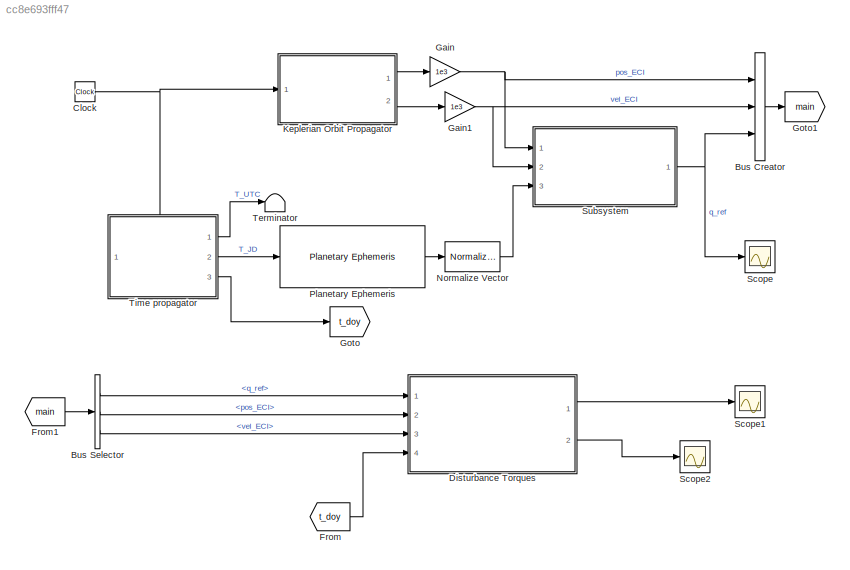
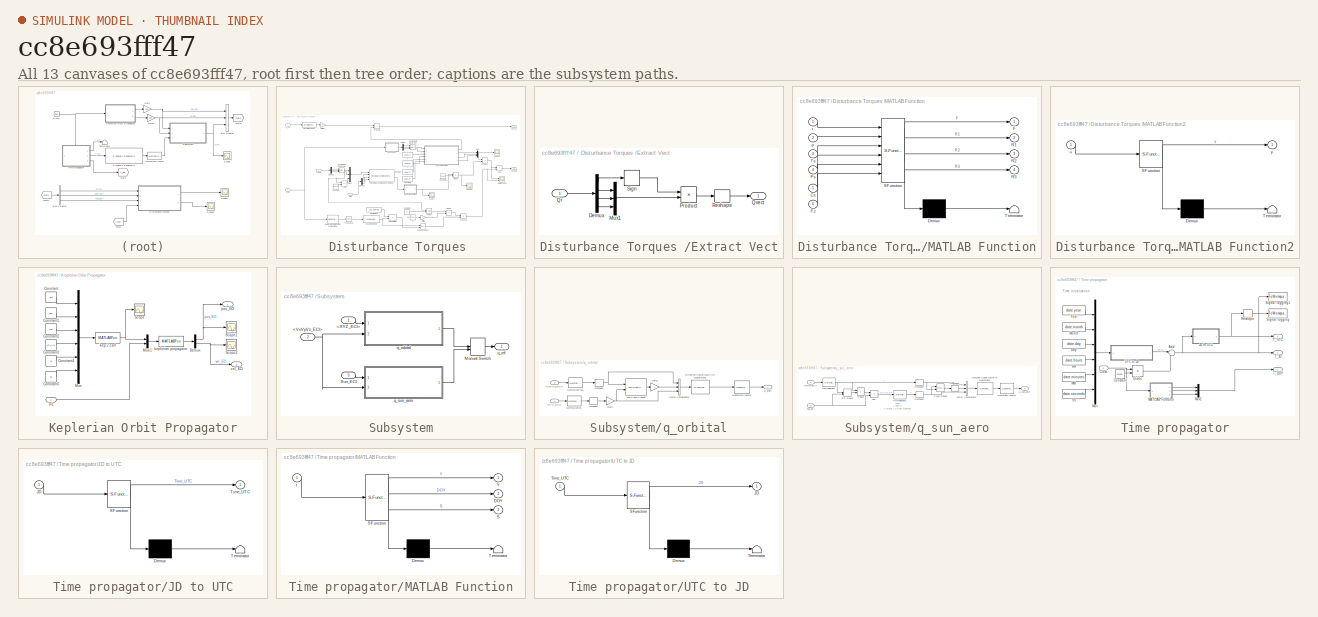
[diagram: thumbnail index - all 13 canvases of the model, root first then tree order]
MODEL slx_cc8e693fff47
KIND model
CONFIG AbsTol = auto
CONFIG EnableMultiTasking = off
CONFIG FixedStep = TimeStep
CONFIG MaxStep = auto
CONFIG MinStep = auto
CONFIG RelTol = 1e-3
CONFIG SampleTimeConstraint = Unconstrained
CONFIG SolverName = FixedStepAuto
CONFIG StartTime = 0.0
CONFIG StopTime = t_sim
BLOCK [BusCreator] Bus Creator
  DisplayOption = bar
  InheritFromInputs = on
  Inputs = 3
  Ports = [3, 1]
BLOCK [BusSelector] Bus Selector
  OutputSignals = q_ref,pos_ECI,vel_ECI
  Ports = [1, 3]
BLOCK [Clock] Clock
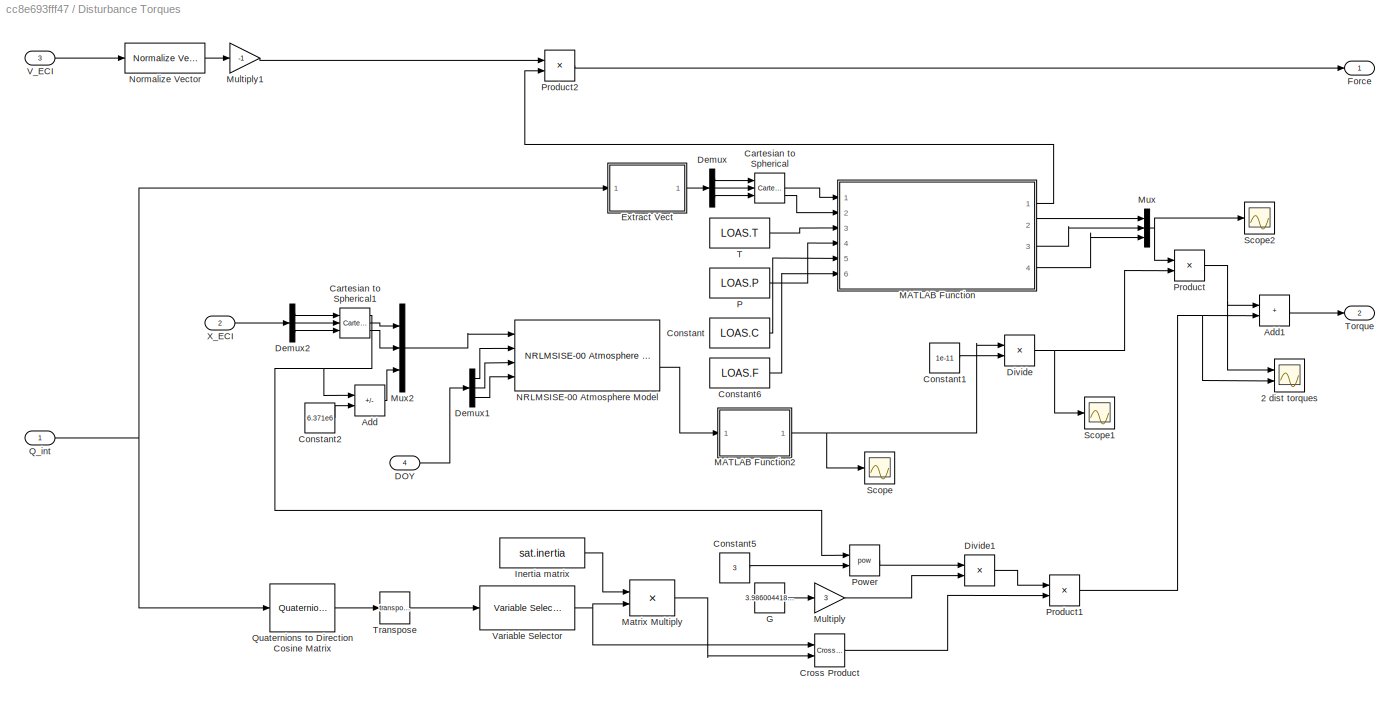
BLOCK [SubSystem] Disturbance Torques 
  Ports = [4, 2]
  RequestExecContextInheritance = off
BLOCK [Scope] Disturbance Torques /2 dist torques
  Floating = off
  NumInputPorts = 2
  Ports = [2]
  ScopeSpecificationString = Simulink.scopes.TimeScopeBlockCfg('CurrentConfiguration', extmgr.ConfigurationSet(extmgr.Configuration('Core','General UI',true),extmgr.Configuration('Core','Source UI',true),extmgr.Configuration('Sources','WiredSimulink',true,'DataLoggingVariableName','ScopeData1'),extmgr.Configuration('Visuals','Time Domain',true,'SerializedDisplays',{struct('MinYLimReal','-0.00000005','MaxYLimReal','0.00000007'...<+2345ch>
BLOCK [Sum] Disturbance Torques /Add
  IconShape = rectangular
  Inputs = +-
  Ports = [2, 1]
BLOCK [Sum] Disturbance Torques /Add1
  IconShape = rectangular
  Ports = [2, 1]
BLOCK [Reference] Disturbance Torques /Cartesian to Spherical  REF=simulink_extras/Transformations/Cartesian to
Spherical
  Ports = [3, 3]
  SourceBlock = simulink_extras/Transformations/Cartesian to\nSpherical
  SourceProductBaseCode = SL
  SourceType = Cart2Sph
BLOCK [Reference] Disturbance Torques /Cartesian to Spherical1  REF=simulink_extras/Transformations/Cartesian to
Spherical
  Ports = [3, 3]
  SourceBlock = simulink_extras/Transformations/Cartesian to\nSpherical
  SourceProductBaseCode = SL
  SourceType = Cart2Sph
BLOCK [Constant] Disturbance Torques /Constant
  Value = LOAS.C
BLOCK [Constant] Disturbance Torques /Constant1
  Value = 1e-11
BLOCK [Constant] Disturbance Torques /Constant2
  Value = 6.371e6
BLOCK [Constant] Disturbance Torques /Constant5
  Value = 3
BLOCK [Constant] Disturbance Torques /Constant6
  Value = LOAS.F
BLOCK [Reference] Disturbance Torques /Cross Product  REF=vrlib/Utilities/Cross Product
  Ports = [2, 1]
  SourceBlock = vrlib/Utilities/Cross Product
  SourceProductBaseCode = SL
  SourceType = Cross Product
BLOCK [Inport] Disturbance Torques /DOY
  Port = 4
BLOCK [Demux] Disturbance Torques /Demux
  Outputs = 3
  Ports = [1, 3]
BLOCK [Demux] Disturbance Torques /Demux1
  Outputs = 3
  Ports = [1, 3]
BLOCK [Demux] Disturbance Torques /Demux2
  Outputs = 3
  Ports = [1, 3]
BLOCK [Product] Disturbance Torques /Divide
  Inputs = */
  Ports = [2, 1]
BLOCK [Product] Disturbance Torques /Divide1
  Inputs = /*
  Ports = [2, 1]
BLOCK [SubSystem] Disturbance Torques /Extract Vect
  Ports = [1, 1]
  RequestExecContextInheritance = off
BLOCK [Demux] Disturbance Torques /Extract Vect/Demux
  Ports = [1, 4]
BLOCK [Mux] Disturbance Torques /Extract Vect/Mux1
  DisplayOption = bar
  Inputs = 3
  Ports = [3, 1]
BLOCK [Product] Disturbance Torques /Extract Vect/Product
  Ports = [2, 1]
BLOCK [Inport] Disturbance Torques /Extract Vect/Qr
BLOCK [Outport] Disturbance Torques /Extract Vect/Qvect
  VectorParamsAs1DForOutWhenUnconnected = off
BLOCK [Reshape] Disturbance Torques /Extract Vect/Reshape
  OutputDimensionality = Column vector (2-D)
  Ports = [1, 1]
BLOCK [Signum] Disturbance Torques /Extract Vect/Sign
BLOCK [Outport] Disturbance Torques /Force
BLOCK [Constant] Disturbance Torques /G
  Value = 3.9860044188e14
BLOCK [Constant] Disturbance Torques /Inertia matrix
  Value = sat.inertia
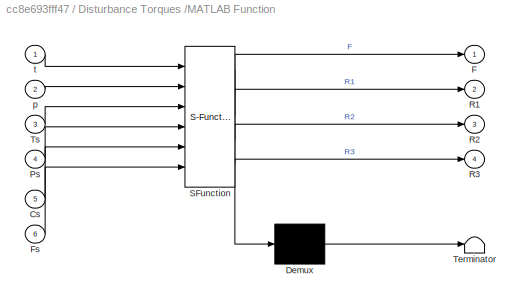
BLOCK [SubSystem] Disturbance Torques /MATLAB Function
  ErrorFcn = Stateflow.Translate.translate
  PermitHierarchicalResolution = ExplicitOnly
  Ports = [6, 4]
  RequestExecContextInheritance = off
  SFBlockType = MATLAB Function
  TreatAsAtomicUnit = on
BLOCK [Demux] Disturbance Torques /MATLAB Function/ Demux 
  Outputs = 1
  Ports = [1, 1]
BLOCK [S-Function] Disturbance Torques /MATLAB Function/ SFunction 
  EnableBusSupport = on
  FunctionName = sf_sfun
  PortCounts = [6 5]
  Ports = [6, 5]
  SFcnIsStateOwnerBlock = off
  SFunctionDeploymentMode = off
  Tag = Stateflow S-Function 4
BLOCK [Terminator] Disturbance Torques /MATLAB Function/ Terminator 
BLOCK [Inport] Disturbance Torques /MATLAB Function/Cs
  Port = 5
BLOCK [Outport] Disturbance Torques /MATLAB Function/F
BLOCK [Inport] Disturbance Torques /MATLAB Function/Fs
  Port = 6
BLOCK [Inport] Disturbance Torques /MATLAB Function/Ps
  Port = 4
BLOCK [Outport] Disturbance Torques /MATLAB Function/R1
  Port = 2
BLOCK [Outport] Disturbance Torques /MATLAB Function/R2
  Port = 3
BLOCK [Outport] Disturbance Torques /MATLAB Function/R3
  Port = 4
BLOCK [Inport] Disturbance Torques /MATLAB Function/Ts
  Port = 3
BLOCK [Inport] Disturbance Torques /MATLAB Function/p
  Port = 2
BLOCK [Inport] Disturbance Torques /MATLAB Function/t
BLOCK [SubSystem] Disturbance Torques /MATLAB Function2
  ErrorFcn = Stateflow.Translate.translate
  PermitHierarchicalResolution = ExplicitOnly
  Ports = [1, 1]
  RequestExecContextInheritance = off
  SFBlockType = MATLAB Function
  TreatAsAtomicUnit = on
BLOCK [Demux] Disturbance Torques /MATLAB Function2/ Demux 
  Outputs = 1
  Ports = [1, 1]
BLOCK [S-Function] Disturbance Torques /MATLAB Function2/ SFunction 
  EnableBusSupport = on
  FunctionName = sf_sfun
  PortCounts = [1 2]
  Ports = [1, 2]
  SFcnIsStateOwnerBlock = off
  SFunctionDeploymentMode = off
  Tag = Stateflow S-Function 6
BLOCK [Terminator] Disturbance Torques /MATLAB Function2/ Terminator 
BLOCK [Inport] Disturbance Torques /MATLAB Function2/u
BLOCK [Outport] Disturbance Torques /MATLAB Function2/y
BLOCK [Product] Disturbance Torques /Matrix Multiply
  Multiplication = Matrix(*)
  Ports = [2, 1]
BLOCK [Gain] Disturbance Torques /Multiply
  Gain = 3
BLOCK [Gain] Disturbance Torques /Multiply1
  Gain = -1
BLOCK [Mux] Disturbance Torques /Mux
  DisplayOption = bar
  Inputs = 3
  Ports = [3, 1]
BLOCK [Mux] Disturbance Torques /Mux2
  DisplayOption = bar
  Inputs = 3
  Ports = [3, 1]
BLOCK [Reference] Disturbance Torques /NRLMSISE-00 Atmosphere Model  REF=aerolibatmos2/NRLMSISE-00
Atmosphere Model
  Ports = [4, 2]
  SourceBlock = aerolibatmos2/NRLMSISE-00\nAtmosphere Model
  SourceProductBaseCode = AE
  SourceType = NRLMSISE-00 Model
BLOCK [Reference] Disturbance Torques /Normalize Vector  REF=vrlib/Utilities/Normalize Vector
  Ports = [1, 1]
  SourceBlock = vrlib/Utilities/Normalize Vector
  SourceProductBaseCode = SL
  SourceType = Normalize Vector
BLOCK [Constant] Disturbance Torques /P 
  Value = LOAS.P
BLOCK [Math] Disturbance Torques /Power
  Operator = pow
  Ports = [2, 1]
BLOCK [Product] Disturbance Torques /Product
  Ports = [2, 1]
BLOCK [Product] Disturbance Torques /Product1
  Ports = [2, 1]
BLOCK [Product] Disturbance Torques /Product2
  Ports = [2, 1]
BLOCK [Inport] Disturbance Torques /Q_int 
BLOCK [Reference] Disturbance Torques /Quaternions to Direction Cosine Matrix  REF=sharedtransform/Quaternions to 
Direction Cosine Matrix
  Ports = [1, 1]
  SourceBlock = sharedtransform/Quaternions to \nDirection Cosine Matrix
  SourceProductBaseCode = AE,PW,MT,UV,VE,VP
  SourceType = Quaternion2DCM
BLOCK [Scope] Disturbance Torques /Scope
  Floating = off
  NumInputPorts = 1
  Ports = [1]
  ScopeSpecificationString = Simulink.scopes.TimeScopeBlockCfg('CurrentConfiguration', extmgr.ConfigurationSet(extmgr.Configuration('Core','General UI',true),extmgr.Configuration('Core','Source UI',true),extmgr.Configuration('Sources','WiredSimulink',true,'DataLoggingVariableName','ScopeData1'),extmgr.Configuration('Visuals','Time Domain',true,'SerializedDisplays',{struct('MinYLimReal','0.0000000000137','MaxYLimReal','0.00000...<+1462ch>
BLOCK [Scope] Disturbance Torques /Scope1
  Floating = off
  NumInputPorts = 1
  Ports = [1]
  ScopeSpecificationString = Simulink.scopes.TimeScopeBlockCfg('CurrentConfiguration', extmgr.ConfigurationSet(extmgr.Configuration('Core','General UI',true),extmgr.Configuration('Core','Source UI',true),extmgr.Configuration('Sources','WiredSimulink',true,'DataLoggingVariableName','ScopeData2'),extmgr.Configuration('Visuals','Time Domain',true,'SerializedDisplays',{struct('MinYLimReal','0.0000000000137','MaxYLimReal','0.00000...<+1462ch>
BLOCK [Scope] Disturbance Torques /Scope2
  Floating = off
  NumInputPorts = 1
  Ports = [1]
  ScopeSpecificationString = Simulink.scopes.TimeScopeBlockCfg('CurrentConfiguration', extmgr.ConfigurationSet(extmgr.Configuration('Core','General UI',true),extmgr.Configuration('Core','Source UI',true),extmgr.Configuration('Sources','WiredSimulink',true,'DataLoggingVariableName','ScopeData3'),extmgr.Configuration('Visuals','Time Domain',true,'SerializedDisplays',{struct('MinYLimReal','0.0000000000137','MaxYLimReal','0.00000...<+1462ch>
BLOCK [Constant] Disturbance Torques /T 
  Value = LOAS.T
BLOCK [Outport] Disturbance Torques /Torque 
  Port = 2
BLOCK [Math] Disturbance Torques /Transpose
  Operator = transpose
  Ports = [1, 1]
BLOCK [Inport] Disturbance Torques /V_ECI
  Port = 3
BLOCK [Reference] Disturbance Torques /Variable Selector  REF=dspindex/Variable
Selector
  Ports = [1, 1]
  SourceBlock = dspindex/Variable\nSelector
  SourceProductBaseCode = DS
  SourceType = Variable Selector
BLOCK [Inport] Disturbance Torques /X_ECI
  Port = 2
BLOCK [From] From
  GotoTag = t_doy
BLOCK [From] From1
  GotoTag = main
BLOCK [Gain] Gain
  Gain = 1e3
BLOCK [Gain] Gain1
  Gain = 1e3
BLOCK [Goto] Goto
  GotoTag = t_doy
BLOCK [Goto] Goto1
  GotoTag = main
BLOCK [SubSystem] Keplerian Orbit Propagator
  Ports = [1, 2]
  RequestExecContextInheritance = off
BLOCK [Constant] Keplerian Orbit Propagator/Constant
  Value = alt
BLOCK [Constant] Keplerian Orbit Propagator/Constant1
  Value = ecc
BLOCK [Constant] Keplerian Orbit Propagator/Constant2
  Value = inc
BLOCK [Constant] Keplerian Orbit Propagator/Constant3
  Value = RAAN
BLOCK [Constant] Keplerian Orbit Propagator/Constant4
  Value = w
BLOCK [Constant] Keplerian Orbit Propagator/Constant5
  Value = nu
BLOCK [Demux] Keplerian Orbit Propagator/Demux
  Outputs = 2
  Ports = [1, 2]
BLOCK [Inport] Keplerian Orbit Propagator/In1
BLOCK [Mux] Keplerian Orbit Propagator/Mux
  DisplayOption = bar
  Inputs = 6
  Ports = [6, 1]
BLOCK [Mux] Keplerian Orbit Propagator/Mux1
  DisplayOption = bar
  Inputs = 2
  Ports = [2, 1]
BLOCK [Scope] Keplerian Orbit Propagator/Scope
  Floating = off
  NumInputPorts = 1
  Ports = [1]
  ScopeSpecificationString = Simulink.scopes.TimeScopeBlockCfg('CurrentConfiguration', extmgr.ConfigurationSet(extmgr.Configuration('Core','General UI',true),extmgr.Configuration('Core','Source UI',true),extmgr.Configuration('Sources','WiredSimulink',true,'DataLoggingVariableName','ScopeData1'),extmgr.Configuration('Visuals','Time Domain',true,'SerializedDisplays',{struct('MinYLimReal','-11.46462','MaxYLimReal','7.36302','YLa...<+1634ch>
BLOCK [Scope] Keplerian Orbit Propagator/Scope1
  Floating = off
  NumInputPorts = 1
  Ports = [1]
  ScopeSpecificationString = Simulink.scopes.TimeScopeBlockCfg('CurrentConfiguration', extmgr.ConfigurationSet(extmgr.Configuration('Core','General UI',true),extmgr.Configuration('Core','Source UI',true),extmgr.Configuration('Sources','WiredSimulink',true,'DataLoggingVariableName','ScopeData2'),extmgr.Configuration('Visuals','Time Domain',true,'SerializedDisplays',{struct('MinYLimReal','-8307.56531','MaxYLimReal','8318.65804'...<+1443ch>
BLOCK [Scope] Keplerian Orbit Propagator/Scope2
  Floating = off
  NumInputPorts = 1
  Ports = [1]
  ScopeSpecificationString = Simulink.scopes.TimeScopeBlockCfg('CurrentConfiguration', extmgr.ConfigurationSet(extmgr.Configuration('Core','General UI',true),extmgr.Configuration('Core','Source UI',true),extmgr.Configuration('Sources','WiredSimulink',true,'DataLoggingVariableName','ScopeData3'),extmgr.Configuration('Visuals','Time Domain',true,'SerializedDisplays',{struct('MinYLimReal','-9.62155','MaxYLimReal','9.61306','YLab...<+1446ch>
BLOCK [MATLABFcn] Keplerian Orbit Propagator/kep 2 cart
  MATLABFcn = Kepler2Carts
  Ports = [1, 1]
BLOCK [MATLABFcn] Keplerian Orbit Propagator/keplerian propagator
  MATLABFcn = kep_propagator
  Ports = [1, 1]
BLOCK [Outport] Keplerian Orbit Propagator/pos_ECI
BLOCK [Outport] Keplerian Orbit Propagator/vel_ECI
  Port = 2
BLOCK [Reference] Normalize Vector  REF=vrlib/Utilities/Normalize Vector
  Ports = [1, 1]
  SourceBlock = vrlib/Utilities/Normalize Vector
  SourceProductBaseCode = SL
  SourceType = Normalize Vector
BLOCK [Reference] Planetary Ephemeris  REF=aerolibcelestial/Planetary Ephemeris
  Ports = [1, 1]
  SourceBlock = aerolibcelestial/Planetary Ephemeris
  SourceProductBaseCode = AE
  SourceType = PlanetaryEphemeris
BLOCK [Scope] Scope
  Floating = off
  NumInputPorts = 1
  Ports = [1]
  ScopeSpecificationString = Simulink.scopes.TimeScopeBlockCfg('CurrentConfiguration', extmgr.ConfigurationSet(extmgr.Configuration('Core','General UI',true),extmgr.Configuration('Core','Source UI',true),extmgr.Configuration('Sources','WiredSimulink',true,'DataLoggingVariableName','ScopeData1'),extmgr.Configuration('Visuals','Time Domain',true,'SerializedDisplays',{struct('MinYLimReal','-0.95121','MaxYLimReal','0.8075','YLabe...<+1408ch>
BLOCK [Scope] Scope1
  Floating = off
  NumInputPorts = 1
  Ports = [1]
  ScopeSpecificationString = Simulink.scopes.TimeScopeBlockCfg('CurrentConfiguration', extmgr.ConfigurationSet(extmgr.Configuration('Core','General UI',true),extmgr.Configuration('Core','Source UI',true),extmgr.Configuration('Sources','WiredSimulink',true,'DataLoggingVariableName','ScopeData2'),extmgr.Configuration('Visuals','Time Domain',true,'SerializedDisplays',{struct('MinYLimReal','-0.00007','MaxYLimReal','0.00007','YLab...<+1437ch>
BLOCK [Scope] Scope2
  Floating = off
  NumInputPorts = 1
  Ports = [1]
  ScopeSpecificationString = Simulink.scopes.TimeScopeBlockCfg('CurrentConfiguration', extmgr.ConfigurationSet(extmgr.Configuration('Core','General UI',true),extmgr.Configuration('Core','Source UI',true),extmgr.Configuration('Sources','WiredSimulink',true,'DataLoggingVariableName','ScopeData3'),extmgr.Configuration('Visuals','Time Domain',true,'SerializedDisplays',{struct('MinYLimReal','-0.00000006','MaxYLimReal','0.00000007'...<+1461ch>
BLOCK [SubSystem] Subsystem
  Ports = [3, 1]
  RequestExecContextInheritance = off
BLOCK [Inport] Subsystem/<VxVyVz_ECI>
  Port = 2
BLOCK [Inport] Subsystem/<XYZ_ECI>
BLOCK [ManualSwitch] Subsystem/Manual Switch
BLOCK [Inport] Subsystem/Sun_ECI
  Port = 3
BLOCK [SubSystem] Subsystem/q_orbital
  Ports = [2, 1]
  RequestExecContextInheritance = off
BLOCK [Reference] Subsystem/q_orbital/3x3 Cross Product  REF=sharedutil/3x3 Cross Product
  Ports = [2, 1]
  SourceBlock = sharedutil/3x3 Cross Product
  SourceProductBaseCode = AE,PW,MT,UV,VE,VP
  SourceType = CrossProduct
BLOCK [Inport] Subsystem/q_orbital/<VxVyVz_ECI>
  Port = 2
BLOCK [Inport] Subsystem/q_orbital/<XYZ_ECI>
BLOCK [Reference] Subsystem/q_orbital/Direction Cosine Matrix to Quaternions  REF=sharedtransform/Direction Cosine Matrix 
to Quaternions
  Ports = [1, 1]
  SourceBlock = sharedtransform/Direction Cosine Matrix \nto Quaternions
  SourceProductBaseCode = AE,PW,MT,UV,VE,VP
  SourceType = DCM2Quaternion
BLOCK [Gain] Subsystem/q_orbital/Gain
BLOCK [Gain] Subsystem/q_orbital/Gain1
  Gain = -1
BLOCK [Reference] Subsystem/q_orbital/Normalization  REF=dspmathops/Normalization
  Ports = [1, 1]
  SourceBlock = dspmathops/Normalization
  SourceProductBaseCode = DS
  SourceType = Normalization
BLOCK [Reference] Subsystem/q_orbital/Normalization1  REF=dspmathops/Normalization
  Ports = [1, 1]
  SourceBlock = dspmathops/Normalization
  SourceProductBaseCode = DS
  SourceType = Normalization
BLOCK [Outport] Subsystem/q_orbital/Q_orbit
  VectorParamsAs1DForOutWhenUnconnected = off
BLOCK [Reference] Subsystem/q_orbital/Quaternion Inverse  REF=aerolibutil/Quaternion
Inverse
  Ports = [1, 1]
  SourceBlock = aerolibutil/Quaternion\nInverse
  SourceProductBaseCode = AE
  SourceType = Quaternion Inverse
BLOCK [Reshape] Subsystem/q_orbital/Reshape
  OutputDimensionality = Column vector (2-D)
  Ports = [1, 1]
BLOCK [Reshape] Subsystem/q_orbital/Reshape1
  OutputDimensionality = Column vector (2-D)
  Ports = [1, 1]
BLOCK [Concatenate] Subsystem/q_orbital/Vector Concatenate
  ConcatenateDimension = 2
  Mode = Multidimensional array
  NumInputs = 3
  Ports = [3, 1]
BLOCK [Outport] Subsystem/q_ref
BLOCK [SubSystem] Subsystem/q_sun_aero
  Ports = [2, 1]
  RequestExecContextInheritance = off
BLOCK [Inport] Subsystem/q_sun_aero/<VxVyVz_ECI>
  Port = 2
BLOCK [Reference] Subsystem/q_sun_aero/Cross Product  REF=vrlib/Utilities/Cross Product
  Ports = [2, 1]
  SourceBlock = vrlib/Utilities/Cross Product
  SourceProductBaseCode = SL
  SourceType = Cross Product
BLOCK [Reference] Subsystem/q_sun_aero/Direction Cosine Matrix to Quaternions  REF=sharedtransform/Direction Cosine Matrix 
to Quaternions
  Ports = [1, 1]
  SourceBlock = sharedtransform/Direction Cosine Matrix \nto Quaternions
  SourceProductBaseCode = AE,PW,MT,UV,VE,VP
  SourceType = DCM2Quaternion
BLOCK [DotProduct] Subsystem/q_sun_aero/Dot Product
  OutDataTypeStr = Inherit: Inherit via internal rule
BLOCK [Reference] Subsystem/q_sun_aero/Normalization1  REF=dspmathops/Normalization
  Ports = [1, 1]
  SourceBlock = dspmathops/Normalization
  SourceProductBaseCode = DS
  SourceType = Normalization
BLOCK [Reference] Subsystem/q_sun_aero/Normalization2  REF=dspmathops/Normalization
  Ports = [1, 1]
  SourceBlock = dspmathops/Normalization
  SourceProductBaseCode = DS
  SourceType = Normalization
BLOCK [Sum] Subsystem/q_sun_aero/Plus
  IconShape = rectangular
  Inputs = -+
  Ports = [2, 1]
BLOCK [Product] Subsystem/q_sun_aero/Product
  Ports = [2, 1]
BLOCK [Outport] Subsystem/q_sun_aero/Q_sun_aero
  VectorParamsAs1DForOutWhenUnconnected = off
BLOCK [Reference] Subsystem/q_sun_aero/Quaternion Inverse  REF=aerolibutil/Quaternion
Inverse
  Ports = [1, 1]
  SourceBlock = aerolibutil/Quaternion\nInverse
  SourceProductBaseCode = AE
  SourceType = Quaternion Inverse
BLOCK [Reshape] Subsystem/q_sun_aero/Reshape1
  OutputDimensionality = Column vector (2-D)
  Ports = [1, 1]
BLOCK [Reshape] Subsystem/q_sun_aero/Reshape2
  OutputDimensionality = Column vector (2-D)
  Ports = [1, 1]
BLOCK [Reshape] Subsystem/q_sun_aero/Reshape3
  OutputDimensionality = Column vector (2-D)
  Ports = [1, 1]
BLOCK [Inport] Subsystem/q_sun_aero/Sun_ECI
BLOCK [Concatenate] Subsystem/q_sun_aero/Vector Concatenate
  ConcatenateDimension = 2
  Mode = Multidimensional array
  NumInputs = 3
  Ports = [3, 1]
BLOCK [Terminator] Terminator
BLOCK [SubSystem] Time propagator
  PortSchema = {"entries":[{"content":{"sides":[{"content":{"connectorIds":[]},"type":"ConnectorPlacement.EquallySpacedRectSide","uuid":"7ef5eb6e-74fd-40ed-a8ee-9d1a69b44829"},{"content":{"connectorIds":["Out1","Out2","Out3"],"side":"RIGHT"},"type":"ConnectorPlacement.EquallySpacedRectSide","uuid":"c2943143-c830-4f44-8257-0a7a59c653c3"},{"content":{"connectorIds":["In1"],"side":"TOP"},"type":"ConnectorPlacement....<+398ch>
  Ports = [1, 3]
  RequestExecContextInheritance = off
BLOCK [Sum] Time propagator/Add
  Inputs = |++
  Ports = [2, 1]
BLOCK [Inport] Time propagator/Clock
BLOCK [Constant] Time propagator/Constant
  Value = 86400
BLOCK [Constant] Time propagator/Day
  Value = date.day
BLOCK [Product] Time propagator/Divide
  Inputs = */
  Ports = [2, 1]
BLOCK [Constant] Time propagator/HH
  Value = date.hours
BLOCK [SubSystem] Time propagator/JD to UTC
  ErrorFcn = Stateflow.Translate.translate
  PermitHierarchicalResolution = ExplicitOnly
  Ports = [1, 1]
  RequestExecContextInheritance = off
  SFBlockType = MATLAB Function
  TreatAsAtomicUnit = on
BLOCK [Demux] Time propagator/JD to UTC/ Demux 
  Outputs = 1
  Ports = [1, 1]
BLOCK [S-Function] Time propagator/JD to UTC/ SFunction 
  EnableBusSupport = on
  FunctionName = sf_sfun
  PortCounts = [1 2]
  Ports = [1, 2]
  SFcnIsStateOwnerBlock = off
  SFunctionDeploymentMode = off
  Tag = Stateflow S-Function 8
BLOCK [Terminator] Time propagator/JD to UTC/ Terminator 
BLOCK [Inport] Time propagator/JD to UTC/JD
BLOCK [Outport] Time propagator/JD to UTC/Time_UTC
  VectorParamsAs1DForOutWhenUnconnected = off
BLOCK [SubSystem] Time propagator/MATLAB Function
  ErrorFcn = Stateflow.Translate.translate
  PermitHierarchicalResolution = ExplicitOnly
  Ports = [1, 3]
  RequestExecContextInheritance = off
  SFBlockType = MATLAB Function
  TreatAsAtomicUnit = on
BLOCK [Demux] Time propagator/MATLAB Function/ Demux 
  Outputs = 1
  Ports = [1, 1]
BLOCK [S-Function] Time propagator/MATLAB Function/ SFunction 
  EnableBusSupport = on
  FunctionName = sf_sfun
  PortCounts = [1 4]
  Ports = [1, 4]
  SFcnIsStateOwnerBlock = off
  SFunctionDeploymentMode = off
  Tag = Stateflow S-Function 16
BLOCK [Terminator] Time propagator/MATLAB Function/ Terminator 
BLOCK [Outport] Time propagator/MATLAB Function/DOY
  Port = 2
BLOCK [Outport] Time propagator/MATLAB Function/S
  Port = 3
BLOCK [Outport] Time propagator/MATLAB Function/Y
BLOCK [Inport] Time propagator/MATLAB Function/t
BLOCK [Constant] Time propagator/MM
  Value = date.minutes
BLOCK [Constant] Time propagator/Month
  Value = date.month
BLOCK [Mux] Time propagator/Mux
  DisplayOption = bar
  Inputs = 6
  Ports = [6, 1]
BLOCK [Mux] Time propagator/Mux1
  DisplayOption = bar
  Inputs = 3
  Ports = [3, 1]
BLOCK [Reshape] Time propagator/Reshape
  Ports = [1, 1]
BLOCK [Constant] Time propagator/SS
  Value = date.seconds
BLOCK [ToWorkspace] Time propagator/Signal logging
  FixptAsFi = on
  MaxDataPoints = inf
  Ports = [1]
  SampleTime = 1
  Save2DSignal = 2-D array (concatenate along first dimension)
  SaveFormat = Timeseries
  VariableName = T_UTC
BLOCK [ToWorkspace] Time propagator/Signal logging1
  FixptAsFi = on
  MaxDataPoints = inf
  Ports = [1]
  SampleTime = 1
  Save2DSignal = 2-D array (concatenate along first dimension)
  SaveFormat = Timeseries
  VariableName = T_JD
BLOCK [Outport] Time propagator/T_DOY
  Port = 3
BLOCK [Outport] Time propagator/T_JD
  Port = 2
  VectorParamsAs1DForOutWhenUnconnected = off
BLOCK [Outport] Time propagator/T_UTC
  VectorParamsAs1DForOutWhenUnconnected = off
BLOCK [SubSystem] Time propagator/UTC to JD
  ErrorFcn = Stateflow.Translate.translate
  PermitHierarchicalResolution = ExplicitOnly
  Ports = [1, 1]
  RequestExecContextInheritance = off
  SFBlockType = MATLAB Function
  TreatAsAtomicUnit = on
BLOCK [Demux] Time propagator/UTC to JD/ Demux 
  Outputs = 1
  Ports = [1, 1]
BLOCK [S-Function] Time propagator/UTC to JD/ SFunction 
  EnableBusSupport = on
  FunctionName = sf_sfun
  PortCounts = [1 2]
  Ports = [1, 2]
  SFcnIsStateOwnerBlock = off
  SFunctionDeploymentMode = off
  Tag = Stateflow S-Function 7
BLOCK [Terminator] Time propagator/UTC to JD/ Terminator 
BLOCK [Outport] Time propagator/UTC to JD/JD
  VectorParamsAs1DForOutWhenUnconnected = off
BLOCK [Inport] Time propagator/UTC to JD/Time_UTC
BLOCK [Constant] Time propagator/Year
  Value = date.year
ANNOTATION Subsystem/q_sun_aero: choix : x selon V z tel que z.GS soit maximisé
ANNOTATION Time propagator: Time initialization
LINE Bus Creator:1 -> Goto1:1
LINE Bus Selector:1 -> Disturbance Torques :1
LINE Bus Selector:2 -> Disturbance Torques :2
LINE Bus Selector:3 -> Disturbance Torques :3
NET Clock:1 -> Keplerian Orbit Propagator:1, Time propagator:1
LINE Disturbance Torques /Add1:1 -> Disturbance Torques /Torque :1
LINE Disturbance Torques /Add:1 -> Disturbance Torques /Mux2:3
NET Disturbance Torques /Cartesian to Spherical1:1 -> Disturbance Torques /Add:1, Disturbance Torques /Power:1
LINE Disturbance Torques /Cartesian to Spherical1:2 -> Disturbance Torques /Mux2:1
LINE Disturbance Torques /Cartesian to Spherical1:3 -> Disturbance Torques /Mux2:2
LINE Disturbance Torques /Cartesian to Spherical:2 -> Disturbance Torques /MATLAB Function:1
LINE Disturbance Torques /Cartesian to Spherical:3 -> Disturbance Torques /MATLAB Function:2
LINE Disturbance Torques /Constant1:1 -> Disturbance Torques /Divide:2
LINE Disturbance Torques /Constant2:1 -> Disturbance Torques /Add:2
LINE Disturbance Torques /Constant5:1 -> Disturbance Torques /Power:2
LINE Disturbance Torques /Constant6:1 -> Disturbance Torques /MATLAB Function:6
LINE Disturbance Torques /Constant:1 -> Disturbance Torques /MATLAB Function:5
LINE Disturbance Torques /Cross Product:1 -> Disturbance Torques /Product1:2
LINE Disturbance Torques /DOY:1 -> Disturbance Torques /Demux1:1
LINE Disturbance Torques /Demux1:1 -> Disturbance Torques /NRLMSISE-00 Atmosphere Model:2
LINE Disturbance Torques /Demux1:2 -> Disturbance Torques /NRLMSISE-00 Atmosphere Model:3
LINE Disturbance Torques /Demux1:3 -> Disturbance Torques /NRLMSISE-00 Atmosphere Model:4
LINE Disturbance Torques /Demux2:1 -> Disturbance Torques /Cartesian to Spherical1:1
LINE Disturbance Torques /Demux2:2 -> Disturbance Torques /Cartesian to Spherical1:2
LINE Disturbance Torques /Demux2:3 -> Disturbance Torques /Cartesian to Spherical1:3
LINE Disturbance Torques /Demux:1 -> Disturbance Torques /Cartesian to Spherical:1
LINE Disturbance Torques /Demux:2 -> Disturbance Torques /Cartesian to Spherical:2
LINE Disturbance Torques /Demux:3 -> Disturbance Torques /Cartesian to Spherical:3
LINE Disturbance Torques /Divide1:1 -> Disturbance Torques /Product1:1
NET Disturbance Torques /Divide:1 -> Disturbance Torques /Product:2, Disturbance Torques /Scope1:1
LINE Disturbance Torques /Extract Vect/Demux:1 -> Disturbance Torques /Extract Vect/Sign:1
LINE Disturbance Torques /Extract Vect/Demux:2 -> Disturbance Torques /Extract Vect/Mux1:1
LINE Disturbance Torques /Extract Vect/Demux:3 -> Disturbance Torques /Extract Vect/Mux1:2
LINE Disturbance Torques /Extract Vect/Demux:4 -> Disturbance Torques /Extract Vect/Mux1:3
LINE Disturbance Torques /Extract Vect/Mux1:1 -> Disturbance Torques /Extract Vect/Product:2
LINE Disturbance Torques /Extract Vect/Product:1 -> Disturbance Torques /Extract Vect/Reshape:1
LINE Disturbance Torques /Extract Vect/Qr:1 -> Disturbance Torques /Extract Vect/Demux:1
LINE Disturbance Torques /Extract Vect/Reshape:1 -> Disturbance Torques /Extract Vect/Qvect:1
LINE Disturbance Torques /Extract Vect/Sign:1 -> Disturbance Torques /Extract Vect/Product:1
LINE Disturbance Torques /Extract Vect:1 -> Disturbance Torques /Demux:1
LINE Disturbance Torques /G:1 -> Disturbance Torques /Multiply:1
LINE Disturbance Torques /Inertia matrix:1 -> Disturbance Torques /Matrix Multiply:1
NET Disturbance Torques /MATLAB Function2:1 -> Disturbance Torques /Divide:1, Disturbance Torques /Scope:1
LINE Disturbance Torques /MATLAB Function:1 -> Disturbance Torques /Product2:2
LINE Disturbance Torques /MATLAB Function:2 -> Disturbance Torques /Mux:1
LINE Disturbance Torques /MATLAB Function:3 -> Disturbance Torques /Mux:2
LINE Disturbance Torques /MATLAB Function:4 -> Disturbance Torques /Mux:3
LINE Disturbance Torques /Matrix Multiply:1 -> Disturbance Torques /Cross Product:2
LINE Disturbance Torques /Multiply1:1 -> Disturbance Torques /Product2:1
LINE Disturbance Torques /Multiply:1 -> Disturbance Torques /Divide1:2
LINE Disturbance Torques /Mux2:1 -> Disturbance Torques /NRLMSISE-00 Atmosphere Model:1
NET Disturbance Torques /Mux:1 -> Disturbance Torques /Product:1, Disturbance Torques /Scope2:1
LINE Disturbance Torques /NRLMSISE-00 Atmosphere Model:2 -> Disturbance Torques /MATLAB Function2:1
LINE Disturbance Torques /Normalize Vector:1 -> Disturbance Torques /Multiply1:1
LINE Disturbance Torques /P :1 -> Disturbance Torques /MATLAB Function:4
LINE Disturbance Torques /Power:1 -> Disturbance Torques /Divide1:1
NET Disturbance Torques /Product1:1 -> Disturbance Torques /2 dist torques:2, Disturbance Torques /Add1:2
LINE Disturbance Torques /Product2:1 -> Disturbance Torques /Force:1
NET Disturbance Torques /Product:1 -> Disturbance Torques /2 dist torques:1, Disturbance Torques /Add1:1
NET Disturbance Torques /Q_int :1 -> Disturbance Torques /Extract Vect:1, Disturbance Torques /Quaternions to Direction Cosine Matrix:1
LINE Disturbance Torques /Quaternions to Direction Cosine Matrix:1 -> Disturbance Torques /Transpose:1
LINE Disturbance Torques /T :1 -> Disturbance Torques /MATLAB Function:3
LINE Disturbance Torques /Transpose:1 -> Disturbance Torques /Variable Selector:1
LINE Disturbance Torques /V_ECI:1 -> Disturbance Torques /Normalize Vector:1
NET Disturbance Torques /Variable Selector:1 -> Disturbance Torques /Cross Product:1, Disturbance Torques /Matrix Multiply:2
LINE Disturbance Torques /X_ECI:1 -> Disturbance Torques /Demux2:1
LINE Disturbance Torques :1 -> Scope1:1
LINE Disturbance Torques :2 -> Scope2:1
LINE From1:1 -> Bus Selector:1
LINE From:1 -> Disturbance Torques :4
NET Gain1:1 -> Bus Creator:2, Subsystem:2
NET Gain:1 -> Bus Creator:1, Subsystem:1
LINE Keplerian Orbit Propagator/Constant1:1 -> Keplerian Orbit Propagator/Mux:2
LINE Keplerian Orbit Propagator/Constant2:1 -> Keplerian Orbit Propagator/Mux:3
LINE Keplerian Orbit Propagator/Constant3:1 -> Keplerian Orbit Propagator/Mux:4
LINE Keplerian Orbit Propagator/Constant4:1 -> Keplerian Orbit Propagator/Mux:5
LINE Keplerian Orbit Propagator/Constant5:1 -> Keplerian Orbit Propagator/Mux:6
LINE Keplerian Orbit Propagator/Constant:1 -> Keplerian Orbit Propagator/Mux:1
NET Keplerian Orbit Propagator/Demux:1 -> Keplerian Orbit Propagator/Scope1:1, Keplerian Orbit Propagator/pos_ECI:1
NET Keplerian Orbit Propagator/Demux:2 -> Keplerian Orbit Propagator/Scope2:1, Keplerian Orbit Propagator/vel_ECI:1
LINE Keplerian Orbit Propagator/In1:1 -> Keplerian Orbit Propagator/Mux1:2
LINE Keplerian Orbit Propagator/Mux1:1 -> Keplerian Orbit Propagator/keplerian propagator:1
LINE Keplerian Orbit Propagator/Mux:1 -> Keplerian Orbit Propagator/kep 2 cart:1
NET Keplerian Orbit Propagator/kep 2 cart:1 -> Keplerian Orbit Propagator/Mux1:1, Keplerian Orbit Propagator/Scope:1
LINE Keplerian Orbit Propagator/keplerian propagator:1 -> Keplerian Orbit Propagator/Demux:1
LINE Keplerian Orbit Propagator:1 -> Gain:1
LINE Keplerian Orbit Propagator:2 -> Gain1:1
LINE Normalize Vector:1 -> Subsystem:3
LINE Planetary Ephemeris:1 -> Normalize Vector:1
NET Subsystem/<VxVyVz_ECI>:1 -> Subsystem/q_orbital:2, Subsystem/q_sun_aero:2
LINE Subsystem/<XYZ_ECI>:1 -> Subsystem/q_orbital:1
LINE Subsystem/Manual Switch:1 -> Subsystem/q_ref:1
LINE Subsystem/Sun_ECI:1 -> Subsystem/q_sun_aero:1
LINE Subsystem/q_orbital/3x3 Cross Product:1 -> Subsystem/q_orbital/Gain1:1
LINE Subsystem/q_orbital/<VxVyVz_ECI>:1 -> Subsystem/q_orbital/Normalization1:1
LINE Subsystem/q_orbital/<XYZ_ECI>:1 -> Subsystem/q_orbital/Normalization:1
LINE Subsystem/q_orbital/Direction Cosine Matrix to Quaternions:1 -> Subsystem/q_orbital/Quaternion Inverse:1
LINE Subsystem/q_orbital/Gain1:1 -> Subsystem/q_orbital/Vector Concatenate:2
NET Subsystem/q_orbital/Gain:1 -> Subsystem/q_orbital/3x3 Cross Product:2, Subsystem/q_orbital/Vector Concatenate:3
LINE Subsystem/q_orbital/Normalization1:1 -> Subsystem/q_orbital/Reshape1:1
LINE Subsystem/q_orbital/Normalization:1 -> Subsystem/q_orbital/Reshape:1
LINE Subsystem/q_orbital/Quaternion Inverse:1 -> Subsystem/q_orbital/Q_orbit:1
NET Subsystem/q_orbital/Reshape1:1 -> Subsystem/q_orbital/3x3 Cross Product:1, Subsystem/q_orbital/Vector Concatenate:1
LINE Subsystem/q_orbital/Reshape:1 -> Subsystem/q_orbital/Gain:1
LINE Subsystem/q_orbital/Vector Concatenate:1 -> Subsystem/q_orbital/Direction Cosine Matrix to Quaternions:1
LINE Subsystem/q_orbital:1 -> Subsystem/Manual Switch:1
LINE Subsystem/q_sun_aero/<VxVyVz_ECI>:1 -> Subsystem/q_sun_aero/Normalization1:1
LINE Subsystem/q_sun_aero/Cross Product:1 -> Subsystem/q_sun_aero/Reshape1:1
LINE Subsystem/q_sun_aero/Direction Cosine Matrix to Quaternions:1 -> Subsystem/q_sun_aero/Quaternion Inverse:1
LINE Subsystem/q_sun_aero/Dot Product:1 -> Subsystem/q_sun_aero/Product:2
NET Subsystem/q_sun_aero/Normalization1:1 -> Subsystem/q_sun_aero/Dot Product:1, Subsystem/q_sun_aero/Product:1, Subsystem/q_sun_aero/Reshape3:1
LINE Subsystem/q_sun_aero/Normalization2:1 -> Subsystem/q_sun_aero/Reshape2:1
LINE Subsystem/q_sun_aero/Plus:1 -> Subsystem/q_sun_aero/Normalization2:1
LINE Subsystem/q_sun_aero/Product:1 -> Subsystem/q_sun_aero/Plus:1
LINE Subsystem/q_sun_aero/Quaternion Inverse:1 -> Subsystem/q_sun_aero/Q_sun_aero:1
LINE Subsystem/q_sun_aero/Reshape1:1 -> Subsystem/q_sun_aero/Vector Concatenate:2
NET Subsystem/q_sun_aero/Reshape2:1 -> Subsystem/q_sun_aero/Cross Product:1, Subsystem/q_sun_aero/Vector Concatenate:3
NET Subsystem/q_sun_aero/Reshape3:1 -> Subsystem/q_sun_aero/Cross Product:2, Subsystem/q_sun_aero/Vector Concatenate:1
NET Subsystem/q_sun_aero/Sun_ECI:1 -> Subsystem/q_sun_aero/Dot Product:2, Subsystem/q_sun_aero/Plus:2
LINE Subsystem/q_sun_aero/Vector Concatenate:1 -> Subsystem/q_sun_aero/Direction Cosine Matrix to Quaternions:1
LINE Subsystem/q_sun_aero:1 -> Subsystem/Manual Switch:2
NET Subsystem:1 -> Bus Creator:3, Scope:1
NET Time propagator/Add:1 -> Time propagator/JD to UTC:1, Time propagator/Signal logging1:1, Time propagator/T_JD:1
NET Time propagator/Clock:1 -> Time propagator/Divide:1, Time propagator/MATLAB Function:1
LINE Time propagator/Constant:1 -> Time propagator/Divide:2
LINE Time propagator/Day:1 -> Time propagator/Mux:3
LINE Time propagator/Divide:1 -> Time propagator/Add:2
LINE Time propagator/HH:1 -> Time propagator/Mux:4
NET Time propagator/JD to UTC:1 -> Time propagator/Reshape:1, Time propagator/T_UTC:1
LINE Time propagator/MATLAB Function:1 -> Time propagator/Mux1:1
LINE Time propagator/MATLAB Function:2 -> Time propagator/Mux1:2
LINE Time propagator/MATLAB Function:3 -> Time propagator/Mux1:3
LINE Time propagator/MM:1 -> Time propagator/Mux:5
LINE Time propagator/Month:1 -> Time propagator/Mux:2
LINE Time propagator/Mux1:1 -> Time propagator/T_DOY:1
LINE Time propagator/Mux:1 -> Time propagator/UTC to JD:1
LINE Time propagator/Reshape:1 -> Time propagator/Signal logging:1
LINE Time propagator/SS:1 -> Time propagator/Mux:6
LINE Time propagator/UTC to JD:1 -> Time propagator/Add:1
LINE Time propagator/Year:1 -> Time propagator/Mux:1
LINE Time propagator:1 -> Terminator:1
LINE Time propagator:2 -> Planetary Ephemeris:1
LINE Time propagator:3 -> Goto:1
note: NET lines group one-source signal fan-out (src -> all destinations, sorted); 1:1 wires keep LINE
CHART Disturbance
Torques
/MATLAB Function states=1 transitions=1
  STATE_LABEL 'eML_blk_kernel()'
  STATE_LABEL 'SCRIPT:\nfunction [F, R1, R2, R3]   = interpol(t,p,Ts, Ps, Cs, Fs)\n    norm1 = 0 ;\n    sum1 = 0;\n    norm2 = 0;\n    sum2= 0;\n    norm3 = 0;\n    sum3 = 0;\n    norm4 = 0;\n    sum4 = 0;\n    s=0.1;\n    for i=1:500\n        t2 = Ts(i,1);\n        p2 = Ps(i,1);\n        c1 = Cs(i,1);\n        c2 = Cs(i,2);\n        c3 = Cs(i,3);\n        f1 = Fs(i,1);\n        dist = distance_on_sphere(t,p,t2,p2);\n        if di...<+479ch>'
CHART Disturbance
Torques
/MATLAB Function2 states=1 transitions=1
  STATE_LABEL 'eML_blk_kernel()'
  STATE_LABEL 'SCRIPT:\nfunction y = fcn(u)\ny = u(6);\n'
CHART Time propagator/UTC to JD states=1 transitions=1
  STATE_LABEL 'eML_blk_kernel()'
  STATE_LABEL 'SCRIPT:\nfunction JD = fcn(Time_UTC)\n\n% JD = juliandate(Time_UTC);\nJD = Dt2jD(Time_UTC);\n'
CHART Time propagator/JD to UTC states=1 transitions=1
  STATE_LABEL 'eML_blk_kernel()'
  STATE_LABEL "SCRIPT:\nfunction Time_UTC = fcn(JD)\n    coder.extrinsic('datetime','datevec');\n    Time_UTC = [0,0,0,0,0,0];\nTime_UTC =  datevec(datetime(JD,'convertfrom','juliandate'));\n"
CHART Time propagator/MATLAB Function states=1 transitions=1
  STATE_LABEL 'eML_blk_kernel()'
  STATE_LABEL 'SCRIPT:\nfunction [Y, DOY, S] = DOY(t)\nY = 2022 + fix(t/31557600);\nDOY = 1+fix((t-floor(t/31557600)*31557600)/86400);\nS = t - fix(t/31557600)*31557600 - (DOY-1)*86400;\n'
CHART  states=0 transitions=0
CHART  states=0 transitions=0
CHART  states=0 transitions=0
CHART  states=0 transitions=0
CHART  states=0 transitions=0
